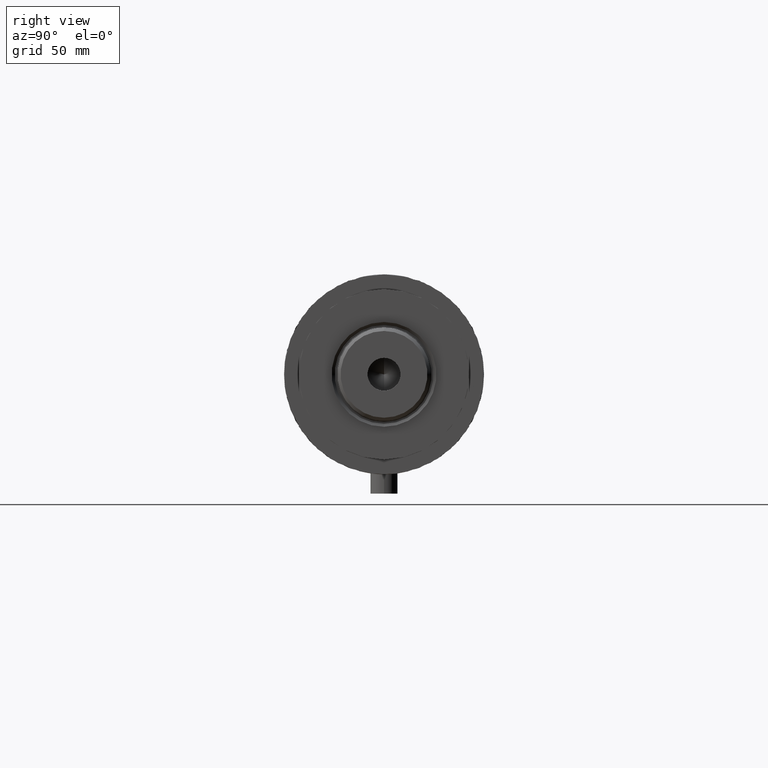
[diagram: clean part render]
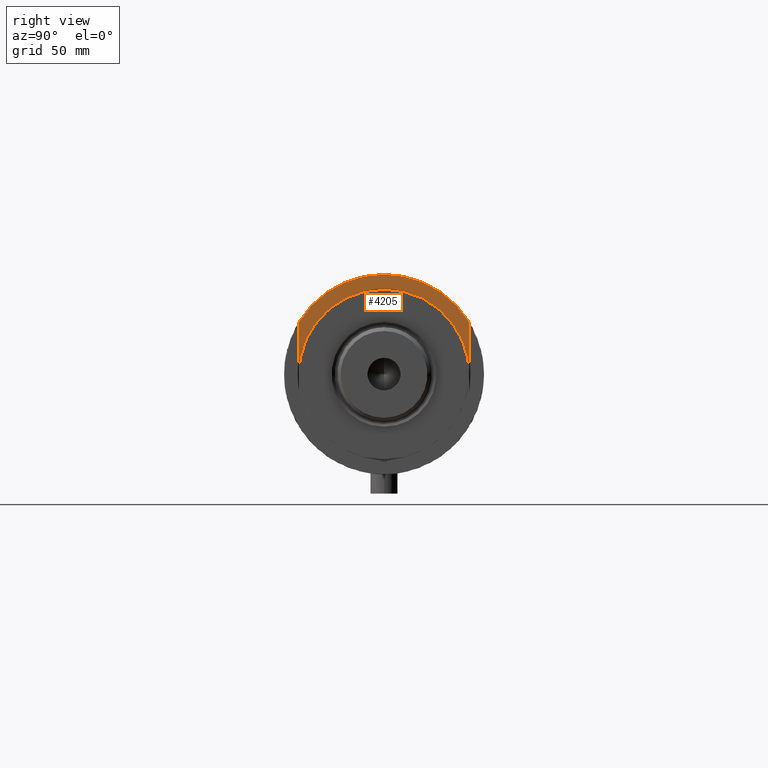
[diagram: same view with one face highlighted and labeled with its STEP entity id]
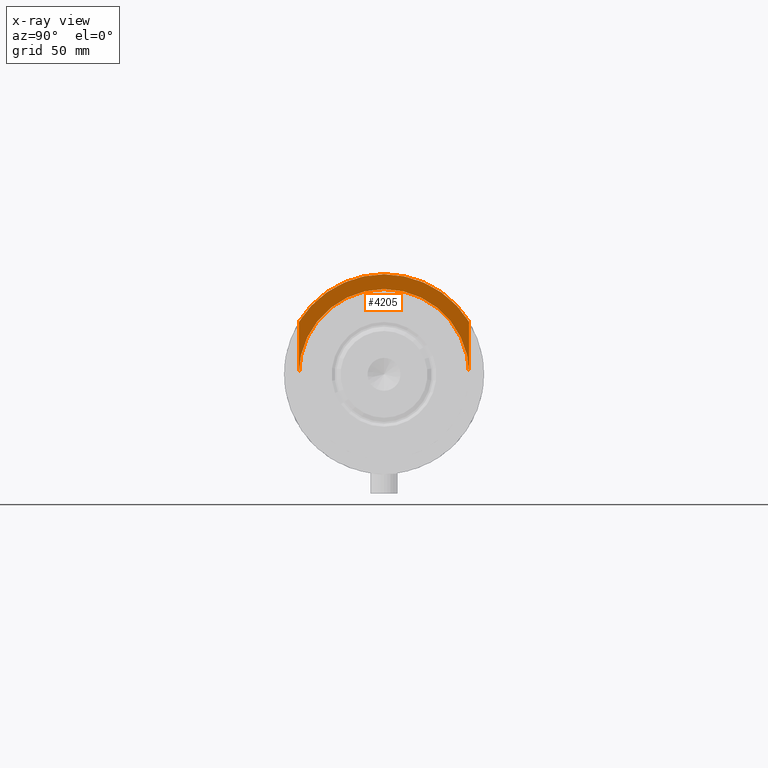
[diagram: x-ray of the same camera — body ghosted, the highlighted face saturated]
A machine part, right view. The second image highlights one B-rep face of the part: STEP entity #4205.
The next image is the same camera in x-ray: the body ghosted, the highlighted face saturated — about 0% of this face is hidden behind the body in this view.
In plain terms, the highlighted planar face has unit normal (1, 0, -0).
Its self-contained STEP definition (entity closure, byte-faithful):
#14 = LINE ( 'NONE', #1722, #4307 ) ;
#39 = AXIS2_PLACEMENT_3D ( 'NONE', #2368, #1682, #2349 ) ;
#53 = CIRCLE ( 'NONE', #4383, 37.50000000000000000 ) ;
#91 = DIRECTION ( 'NONE',  ( 1.000000000000000000, 0.000000000000000000, 0.000000000000000000 ) ) ;
#137 = CARTESIAN_POINT ( 'NONE',  ( -23.01629857296780557, 37.50000000000000000, 27.89999999999999858 ) ) ;
#166 = EDGE_CURVE ( 'NONE', #633, #1136, #3389, .T. ) ;
#179 = CARTESIAN_POINT ( 'NONE',  ( -23.01629857296780557, -37.50000000000000000, 27.89999999999999858 ) ) ;
#229 = DIRECTION ( 'NONE',  ( 1.000000000000000000, 0.000000000000000000, 0.000000000000000000 ) ) ;
#230 = EDGE_CURVE ( 'NONE', #4349, #4473, #786, .T. ) ;
#240 = PLANE ( 'NONE',  #3355 ) ;
#307 = DIRECTION ( 'NONE',  ( 1.000000000000000000, 0.000000000000000000, -0.000000000000000000 ) ) ;
#412 = ORIENTED_EDGE ( 'NONE', *, *, #166, .F. ) ;
#418 = VERTEX_POINT ( 'NONE', #137 ) ;
#514 = CARTESIAN_POINT ( 'NONE',  ( 0.000000000000000000, 0.000000000000000000, 27.89999999999999858 ) ) ;
#573 = DIRECTION ( 'NONE',  ( -0.000000000000000000, -0.000000000000000000, -1.000000000000000000 ) ) ;
#633 = VERTEX_POINT ( 'NONE', #1494 ) ;
#687 = DIRECTION ( 'NONE',  ( 1.000000000000000000, 0.000000000000000000, 0.000000000000000000 ) ) ;
#768 = DIRECTION ( 'NONE',  ( 1.000000000000000000, 0.000000000000000000, 0.000000000000000000 ) ) ;
#786 = CIRCLE ( 'NONE', #1359, 37.50000000000000000 ) ;
#838 = CARTESIAN_POINT ( 'NONE',  ( -44.00000000000000000, 0.000000000000000000, 27.89999999999999858 ) ) ;
#1033 = DIRECTION ( 'NONE',  ( 0.000000000000000000, 0.000000000000000000, 1.000000000000000000 ) ) ;
#1136 = VERTEX_POINT ( 'NONE', #4236 ) ;
#1339 = VERTEX_POINT ( 'NONE', #838 ) ;
#1342 = CARTESIAN_POINT ( 'NONE',  ( -37.50000000000000000, 4.592425496802574367E-15, 27.89999999999999858 ) ) ;
#1350 = DIRECTION ( 'NONE',  ( -0.000000000000000000, -0.000000000000000000, -1.000000000000000000 ) ) ;
#1359 = AXIS2_PLACEMENT_3D ( 'NONE', #514, #573, #229 ) ;
#1458 = CARTESIAN_POINT ( 'NONE',  ( 0.000000000000000000, 0.000000000000000000, 27.89999999999999858 ) ) ;
#1494 = CARTESIAN_POINT ( 'NONE',  ( 0.000000000000000000, -37.50000000000000000, 27.89999999999999858 ) ) ;
#1568 = CARTESIAN_POINT ( 'NONE',  ( 0.000000000000000000, 37.50000000000000000, 27.89999999999999858 ) ) ;
#1682 = DIRECTION ( 'NONE',  ( 0.000000000000000000, 0.000000000000000000, 1.000000000000000000 ) ) ;
#1722 = CARTESIAN_POINT ( 'NONE',  ( -23.01629857296780557, 37.50000000000000000, 27.89999999999999858 ) ) ;
#1733 = ORIENTED_EDGE ( 'NONE', *, *, #2435, .F. ) ;
#1738 = CIRCLE ( 'NONE', #4381, 44.00000000000000000 ) ;
#2031 = ORIENTED_EDGE ( 'NONE', *, *, #3189, .T. ) ;
#2058 = FACE_OUTER_BOUND ( 'NONE', #2820, .T. ) ;
#2244 = VECTOR ( 'NONE', #3045, 1000.000000000000000 ) ;
#2251 = EDGE_CURVE ( 'NONE', #1339, #1136, #2911, .T. ) ;
#2349 = DIRECTION ( 'NONE',  ( 1.000000000000000000, 0.000000000000000000, 0.000000000000000000 ) ) ;
#2368 = CARTESIAN_POINT ( 'NONE',  ( 0.000000000000000000, 0.000000000000000000, 27.89999999999999858 ) ) ;
#2398 = CARTESIAN_POINT ( 'NONE',  ( 0.000000000000000000, 0.000000000000000000, 27.89999999999999858 ) ) ;
#2435 = EDGE_CURVE ( 'NONE', #418, #4473, #14, .T. ) ;
#2591 = ORIENTED_EDGE ( 'NONE', *, *, #3856, .T. ) ;
#2820 = EDGE_LOOP ( 'NONE', ( #412, #2591, #3988, #1733, #2031, #3575 ) ) ;
#2911 = CIRCLE ( 'NONE', #39, 44.00000000000000000 ) ;
#3028 = CARTESIAN_POINT ( 'NONE',  ( 0.000000000000000000, 0.000000000000000000, 27.89999999999999858 ) ) ;
#3045 = DIRECTION ( 'NONE',  ( -1.000000000000000000, -0.000000000000000000, -0.000000000000000000 ) ) ;
#3189 = EDGE_CURVE ( 'NONE', #418, #1339, #1738, .T. ) ;
#3355 = AXIS2_PLACEMENT_3D ( 'NONE', #2398, #3445, #307 ) ;
#3389 = LINE ( 'NONE', #179, #2244 ) ;
#3445 = DIRECTION ( 'NONE',  ( 0.000000000000000000, 0.000000000000000000, 1.000000000000000000 ) ) ;
#3575 = ORIENTED_EDGE ( 'NONE', *, *, #2251, .T. ) ;
#3856 = EDGE_CURVE ( 'NONE', #633, #4349, #53, .T. ) ;
#3988 = ORIENTED_EDGE ( 'NONE', *, *, #230, .T. ) ;
#4205 = ADVANCED_FACE ( 'NONE', ( #2058 ), #240, .T. ) ;
#4236 = CARTESIAN_POINT ( 'NONE',  ( -23.01629857296780557, -37.50000000000000000, 27.89999999999999858 ) ) ;
#4307 = VECTOR ( 'NONE', #768, 1000.000000000000000 ) ;
#4349 = VERTEX_POINT ( 'NONE', #1342 ) ;
#4381 = AXIS2_PLACEMENT_3D ( 'NONE', #1458, #1033, #687 ) ;
#4383 = AXIS2_PLACEMENT_3D ( 'NONE', #3028, #1350, #91 ) ;
#4473 = VERTEX_POINT ( 'NONE', #1568 ) ;